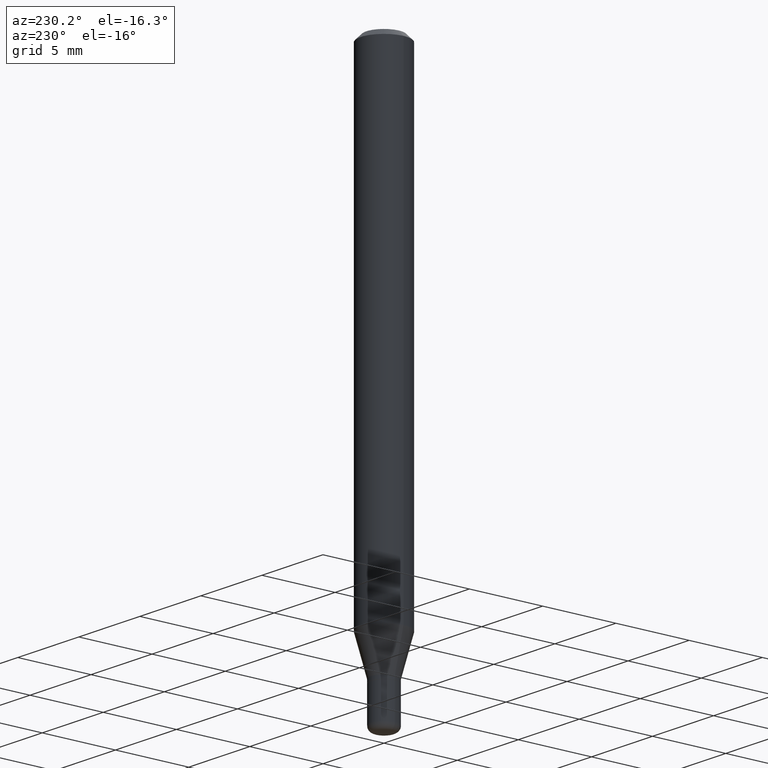
[diagram: clean part render]
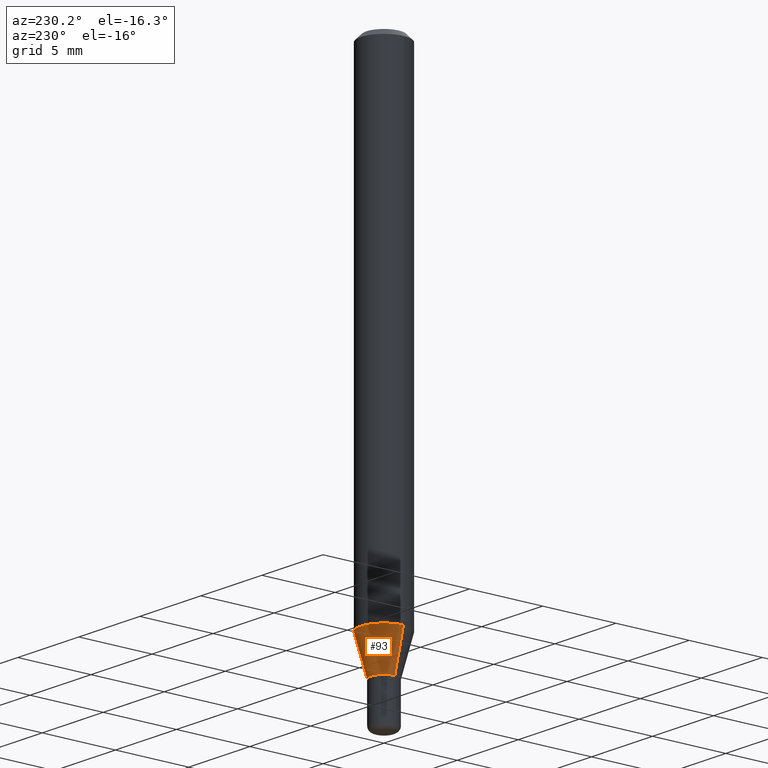
[diagram: same view with one face highlighted and labeled with its STEP entity id]
A machine part, auxiliary view. The second image highlights one B-rep face of the part: STEP entity #93.
In plain terms, the highlighted conical surface has half-angle 15 deg.
Its self-contained STEP definition (entity closure, byte-faithful):
#2 = DIRECTION ( 'NONE',  ( 0.2588190451025211281, 1.565188264969622954E-15, 0.9659258262890679791 ) ) ;
#15 = VERTEX_POINT ( 'NONE', #266 ) ;
#35 = VERTEX_POINT ( 'NONE', #117 ) ;
#50 = CARTESIAN_POINT ( 'NONE',  ( 3.135992416158702162E-29, -4.477366046166123715E-15, -1.282368602791856160 ) ) ;
#64 = CARTESIAN_POINT ( 'NONE',  ( -0.06250000000000000000, -4.033276836316061099E-15, -1.282368602791856160 ) ) ;
#83 = EDGE_CURVE ( 'NONE', #15, #35, #252, .T. ) ;
#86 = FACE_OUTER_BOUND ( 'NONE', #350, .T. ) ;
#93 = ADVANCED_FACE ( 'NONE', ( #86 ), #306, .T. ) ;
#96 = DIRECTION ( 'NONE',  ( -2.445468806185136597E-29, 3.491481338843145583E-15, 1.000000000000000000 ) ) ;
#98 = EDGE_CURVE ( 'NONE', #35, #268, #457, .T. ) ;
#112 = ORIENTED_EDGE ( 'NONE', *, *, #83, .F. ) ;
#117 = CARTESIAN_POINT ( 'NONE',  ( 0.06250000000000000000, -4.913801213521515384E-15, -1.282368602791856160 ) ) ;
#127 = DIRECTION ( 'NONE',  ( -2.445468806185136597E-29, 3.491481338843145583E-15, 1.000000000000000000 ) ) ;
#183 = VERTEX_POINT ( 'NONE', #380 ) ;
#219 = AXIS2_PLACEMENT_3D ( 'NONE', #243, #127, #241 ) ;
#221 = CARTESIAN_POINT ( 'NONE',  ( -0.03500000000000001027, -4.587011696781721293E-15, -1.385000000000000009 ) ) ;
#224 = DIRECTION ( 'NONE',  ( -0.2588190451025211281, 5.211531920934547886E-15, 0.9659258262890679791 ) ) ;
#229 = ORIENTED_EDGE ( 'NONE', *, *, #98, .F. ) ;
#234 = ORIENTED_EDGE ( 'NONE', *, *, #259, .T. ) ;
#240 = LINE ( 'NONE', #221, #484 ) ;
#241 = DIRECTION ( 'NONE',  ( 1.000000000000000000, -6.982962677686275388E-15, 0.000000000000000000 ) ) ;
#243 = CARTESIAN_POINT ( 'NONE',  ( 3.386974296566414366E-29, -4.835701654297756579E-15, -1.385000000000000009 ) ) ;
#252 = LINE ( 'NONE', #285, #419 ) ;
#259 = EDGE_CURVE ( 'NONE', #15, #183, #270, .T. ) ;
#265 = CARTESIAN_POINT ( 'NONE',  ( 3.386974296566414366E-29, -4.835701654297756579E-15, -1.385000000000000009 ) ) ;
#266 = CARTESIAN_POINT ( 'NONE',  ( 0.03500000000000001027, -5.080105348016776545E-15, -1.385000000000000009 ) ) ;
#268 = VERTEX_POINT ( 'NONE', #64 ) ;
#270 = CIRCLE ( 'NONE', #281, 0.03500000000000001027 ) ;
#281 = AXIS2_PLACEMENT_3D ( 'NONE', #265, #284, #439 ) ;
#284 = DIRECTION ( 'NONE',  ( -2.445468806185136597E-29, 3.491481338843145583E-15, 1.000000000000000000 ) ) ;
#285 = CARTESIAN_POINT ( 'NONE',  ( 0.03500000000000001027, -5.080105348016776545E-15, -1.385000000000000009 ) ) ;
#306 = CONICAL_SURFACE ( 'NONE', #219, 0.03500000000000001027, 0.2617993877991498519 ) ;
#329 = EDGE_CURVE ( 'NONE', #183, #268, #240, .T. ) ;
#350 = EDGE_LOOP ( 'NONE', ( #234, #386, #229, #112 ) ) ;
#380 = CARTESIAN_POINT ( 'NONE',  ( -0.03500000000000001027, -4.310144266548890801E-15, -1.385000000000000009 ) ) ;
#384 = AXIS2_PLACEMENT_3D ( 'NONE', #50, #96, #440 ) ;
#386 = ORIENTED_EDGE ( 'NONE', *, *, #329, .T. ) ;
#419 = VECTOR ( 'NONE', #2, 39.37007874015748854 ) ;
#439 = DIRECTION ( 'NONE',  ( 1.000000000000000000, -6.982962677686275388E-15, 0.000000000000000000 ) ) ;
#440 = DIRECTION ( 'NONE',  ( 1.000000000000000000, -6.982962677686262766E-15, 0.000000000000000000 ) ) ;
#457 = CIRCLE ( 'NONE', #384, 0.06250000000000000000 ) ;
#484 = VECTOR ( 'NONE', #224, 39.37007874015748854 ) ;